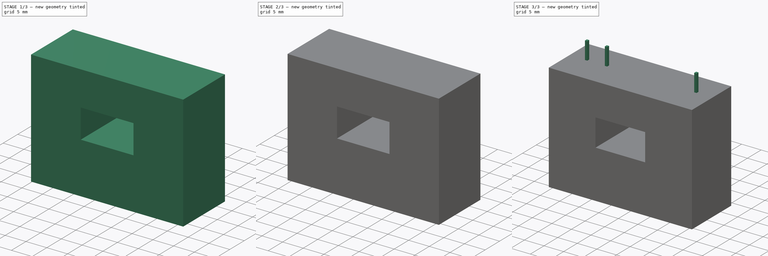
[diagram: build sequence overview — one tinted view per stage of 3, left to right]
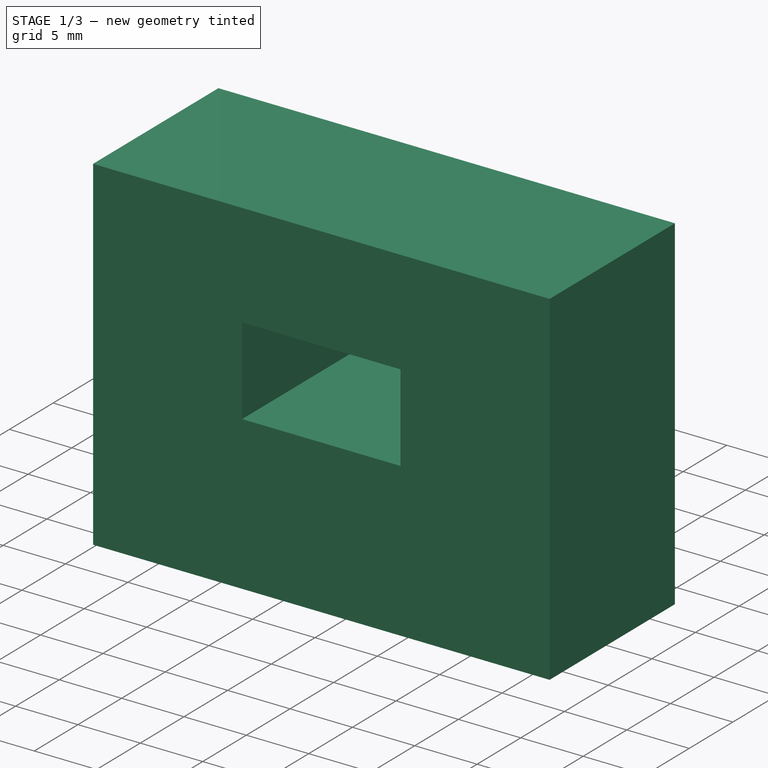
[diagram: stage 1 of 3 — iso view after this stage's code; geometry added in this stage tinted green]
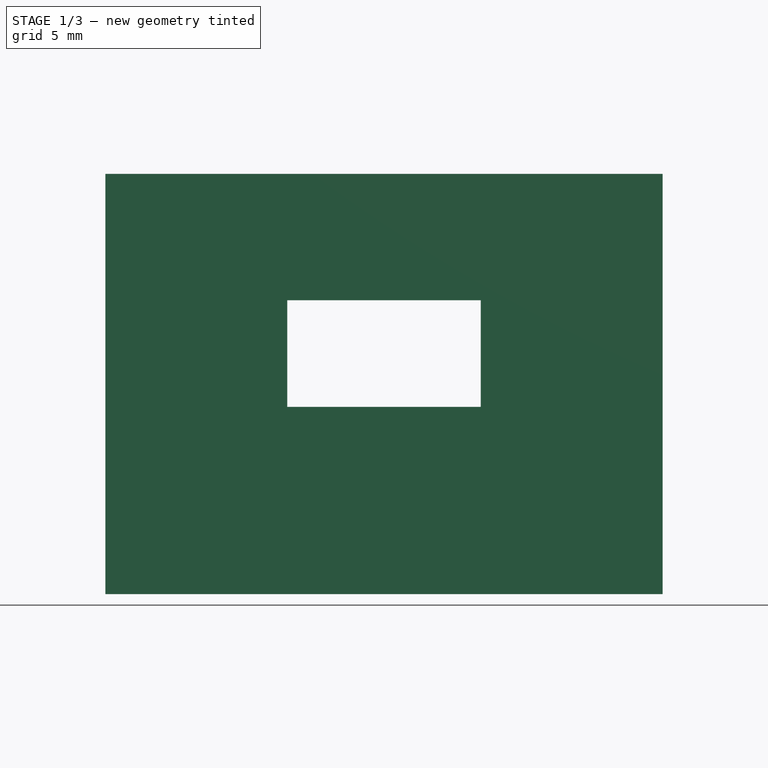
[diagram: stage 1 of 3 — front view after this stage's code; geometry added in this stage tinted green]
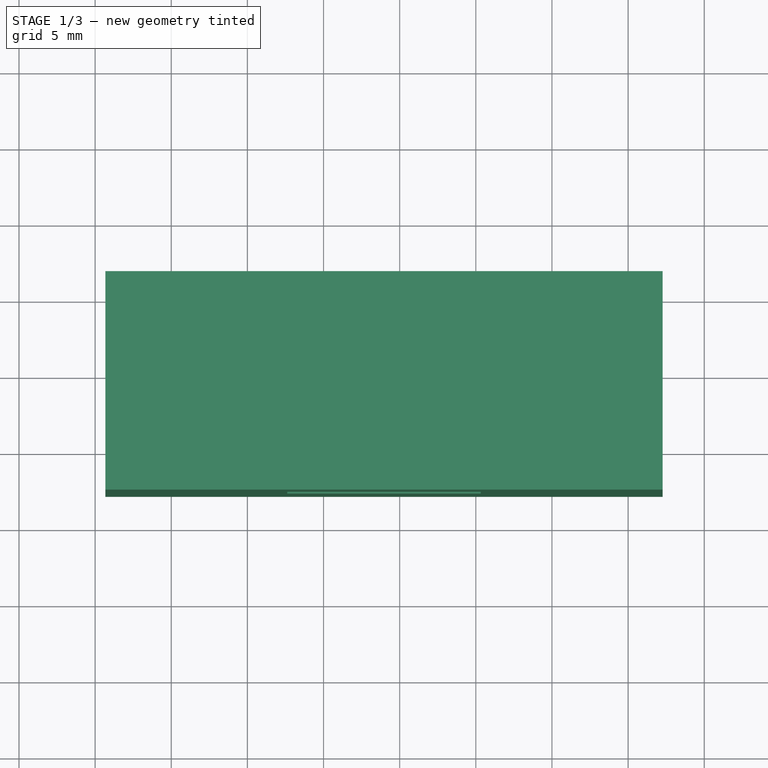
[diagram: stage 1 of 3 — top view after this stage's code; geometry added in this stage tinted green]
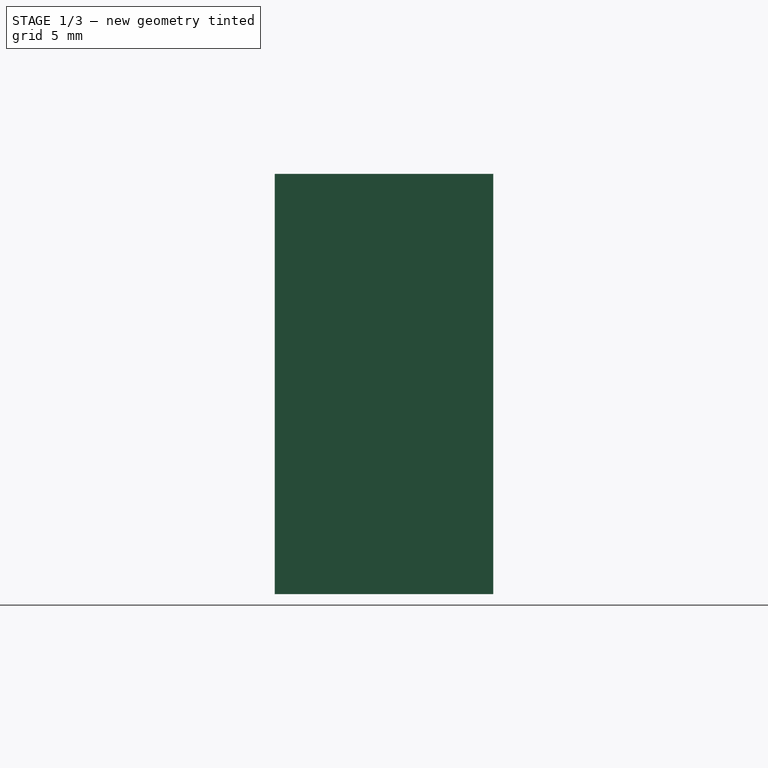
[diagram: stage 1 of 3 — right view after this stage's code; geometry added in this stage tinted green]
FCSTD DOCUMENT  (FreeCAD 0.16R)
Label: LA25-P
License: All rights reserved
LicenseURL: http://en.wikipedia.org/wiki/All_rights_reserved
objects: Sketcher::SketchObject×4, Part::Extrusion×2, PartDesign::Pocket×1, PartDesign::Pad×1, Part::Fuse×1
note: 11 computed .brp shape members not serialized (recipe doc carries the construction recipe); baked Part::Feature solids carry a one-line shape summary decoded from their .brp

FEATURE [Sketcher::SketchObject] Sketch001
  sketch-geometry (4):
    g0: LineSegment StartX=-4.33 StartY=6.55 StartZ=0 EndX=32.27 EndY=6.55 EndZ=0
    g1: LineSegment StartX=32.27 StartY=6.55 StartZ=0 EndX=32.27 EndY=-7.8 EndZ=0
    g2: LineSegment StartX=32.27 StartY=-7.8 StartZ=0 EndX=-4.33 EndY=-7.8 EndZ=0
    g3: LineSegment StartX=-4.33 StartY=-7.8 StartZ=0 EndX=-4.33 EndY=6.55 EndZ=0
  constraints (12):
    c: Coincident(g0,g1)
    c: Coincident(g1,g2)
    c: Coincident(g2,g3)
    c: Coincident(g3,g0)
    c: Horizontal(g0)
    c: Horizontal(g2)
    c: Vertical(g1)
    c: Vertical(g3)
    c: DistanceX(g0,g0) = 36.6
    c: DistanceY(g1,g1) = 14.35
    c: DistanceX(g0,g-1) = 4.33
    c: DistanceY(g-1,g0) = 6.55
FEATURE [Part::Extrusion] Extrude001
  Base = -> Sketch001
  Dir = (0,0,-27.6)
  Solid = true
FEATURE [Sketcher::SketchObject] Sketch002
  Placement = pos=(0,6.55,0) rot=(0,0.707107,0.707107;3.14159rad)
  Support = -> Extrude001 [Face1]
  expr: Constraints[8] = 8.890000000000001 + 5.08
  sketch-geometry (5):
    g0: LineSegment StartX=-20.32 StartY=-8.3 StartZ=0 EndX=-7.62 EndY=-8.3 EndZ=0
    g1: LineSegment StartX=-7.62 StartY=-8.3 StartZ=0 EndX=-7.62 EndY=-15.3 EndZ=0
    g2: LineSegment StartX=-7.62 StartY=-15.3 StartZ=0 EndX=-20.32 EndY=-15.3 EndZ=0
    g3: LineSegment StartX=-20.32 StartY=-15.3 StartZ=0 EndX=-20.32 EndY=-8.3 EndZ=0
    g4: GeomPoint [constr] X=-13.97 Y=-11.8 Z=0
  constraints (13):
    c: Coincident(g0,g1)
    c: Coincident(g1,g2)
    c: Coincident(g2,g3)
    c: Coincident(g3,g0)
    c: Horizontal(g0)
    c: Horizontal(g2)
    c: Vertical(g1)
    c: Vertical(g3)
    c: DistanceX(g4,g-1) = 13.97
    c: DistanceY(g4,g-1) = 11.8
    c: Symmetric(g0,g1,g4)
    c: DistanceY(g1,g1) = 7
    c: DistanceX(g2,g2) = 12.7
FEATURE [PartDesign::Pocket] Pocket
  Length = 5
  Sketch = -> Sketch002
  Type = 1
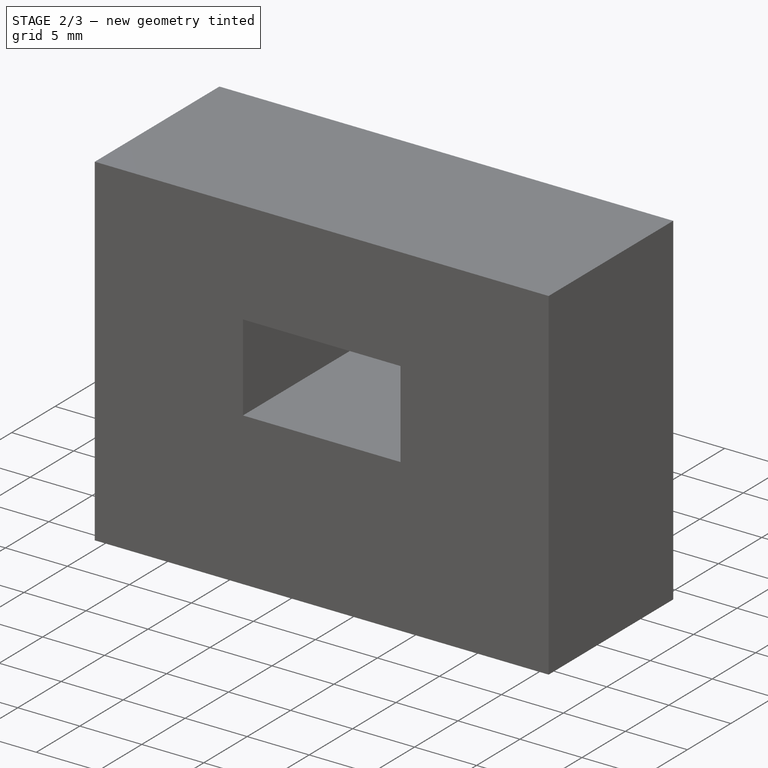
[diagram: stage 2 of 3 — iso view after this stage's code; geometry added in this stage tinted green]
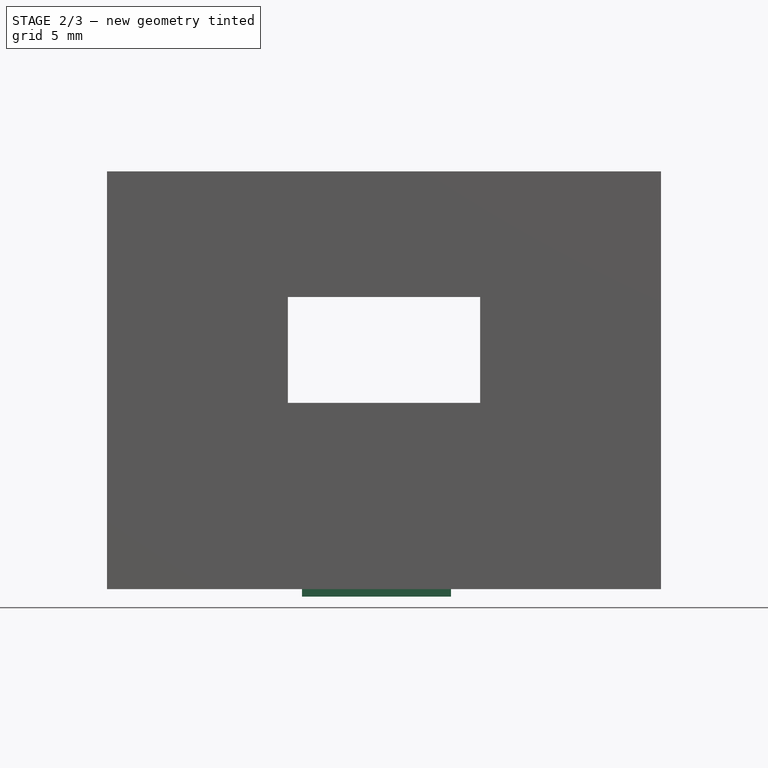
[diagram: stage 2 of 3 — front view after this stage's code; geometry added in this stage tinted green]
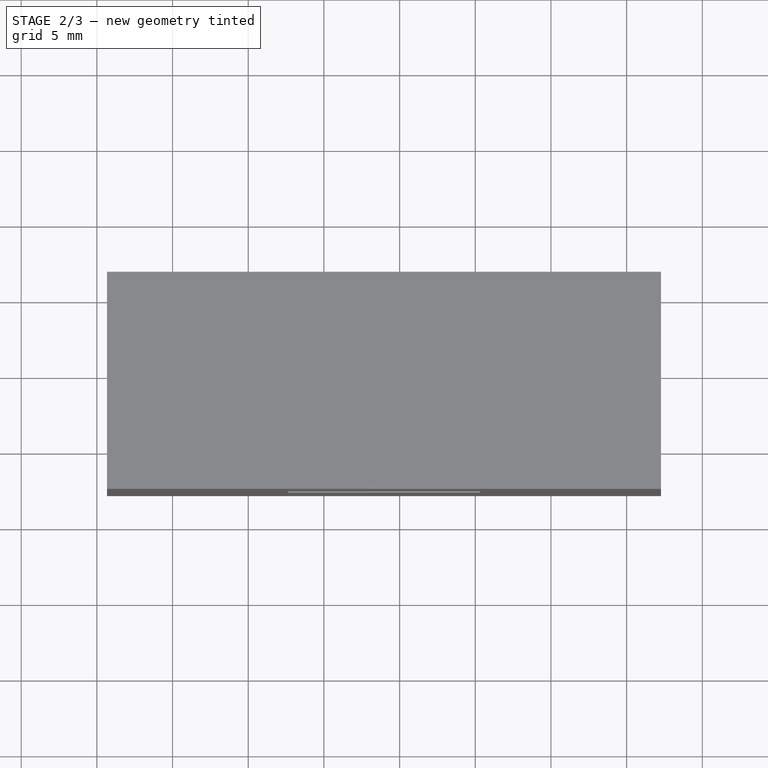
[diagram: stage 2 of 3 — top view after this stage's code; geometry added in this stage tinted green]
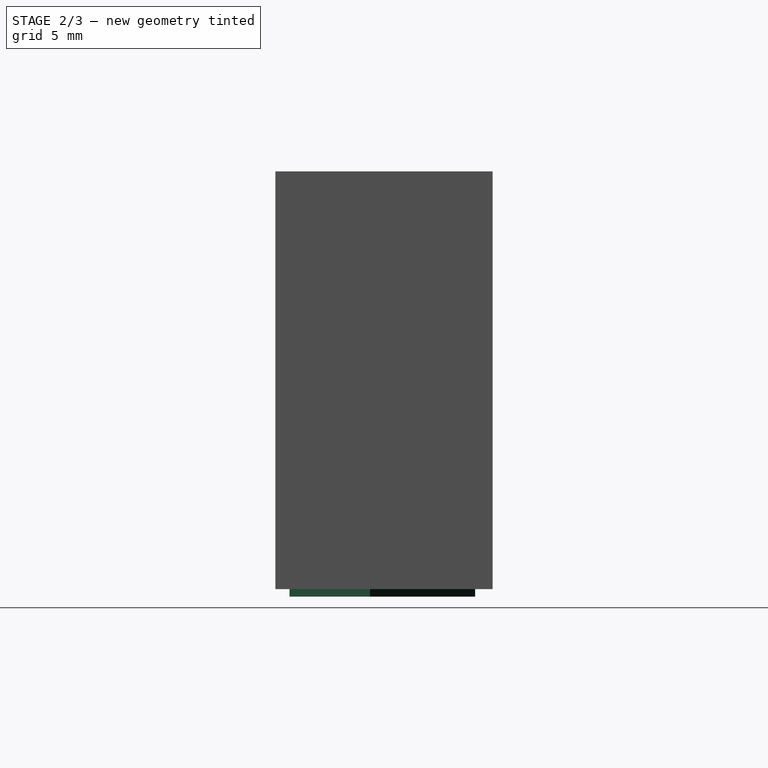
[diagram: stage 2 of 3 — right view after this stage's code; geometry added in this stage tinted green]
FEATURE [Sketcher::SketchObject] Sketch003
  Placement = pos=(0,0,-27.6) rot=(1,0,0;3.14159rad)
  Support = -> Pocket [Face4]
  sketch-geometry (7):
    g0: LineSegment StartX=11.9 StartY=6.87157 StartZ=0 EndX=15.0478 EndY=6.87157 EndZ=0
    g1: LineSegment StartX=15.0478 StartY=6.87157 StartZ=0 EndX=15.0478 EndY=1.54931 EndZ=0
    g2: LineSegment StartX=15.0478 StartY=1.54931 StartZ=0 EndX=18.3963 EndY=1.54931 EndZ=0
    g3: LineSegment StartX=18.3963 StartY=1.54931 StartZ=0 EndX=13.4739 EndY=-5.39675 EndZ=0
    g4: LineSegment StartX=13.4739 StartY=-5.39675 StartZ=0 EndX=8.55147 EndY=1.54931 EndZ=0
    g5: LineSegment StartX=8.55147 StartY=1.54931 StartZ=0 EndX=11.9 EndY=1.54931 EndZ=0
    g6: LineSegment StartX=11.9 StartY=1.54931 StartZ=0 EndX=11.9 EndY=6.87157 EndZ=0
  constraints (15):
    c: Horizontal(g0)
    c: Vertical(g1)
    c: Coincident(g2,g1)
    c: Horizontal(g2)
    c: Coincident(g4,g3)
    c: Horizontal(g5)
    c: Coincident(g6,g5)
    c: Vertical(g6)
    c: Coincident(g1,g0)
    c: Coincident(g6,g0)
    c: Coincident(g5,g4)
    c: Coincident(g3,g2)
    c: DistanceY(g5,g1) = 0
    c: Equal(g2,g5)
    c: Equal(g3,g4)
FEATURE [PartDesign::Pad] Pad
  Length = 0.5
  Length2 = 100
  Sketch = -> Sketch003
  Type = 0
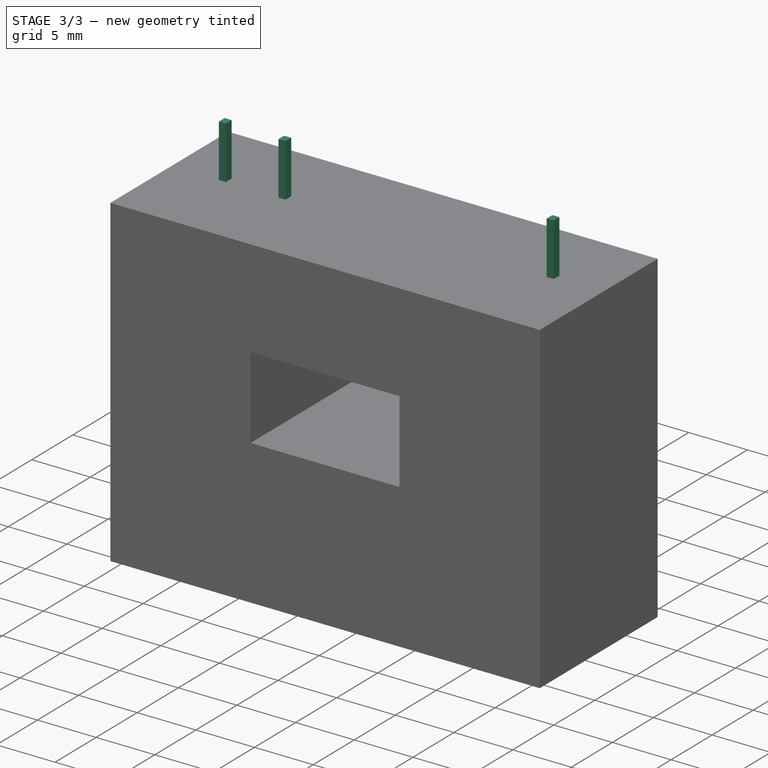
[diagram: stage 3 of 3 — iso view after this stage's code; geometry added in this stage tinted green]
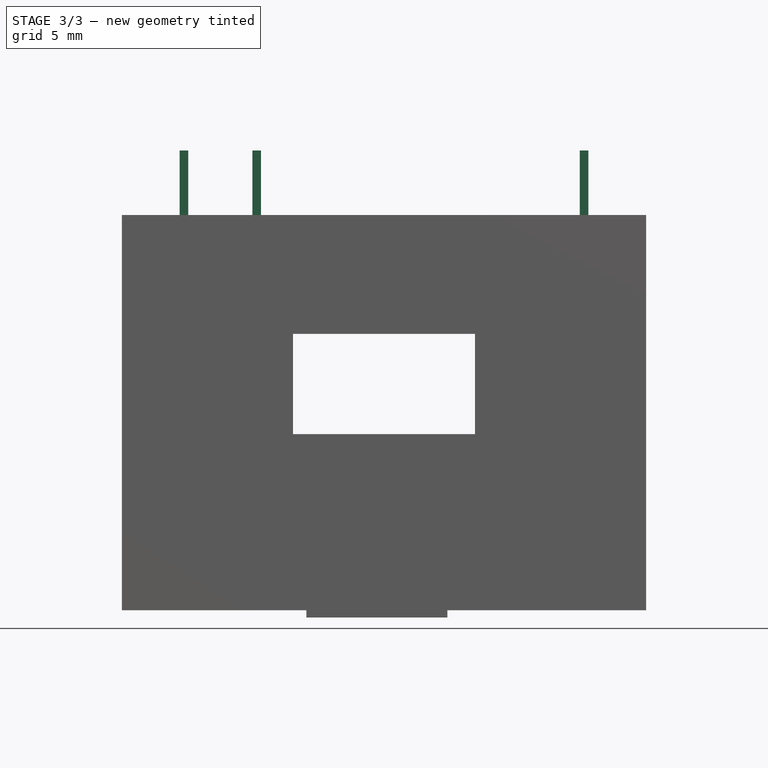
[diagram: stage 3 of 3 — front view after this stage's code; geometry added in this stage tinted green]
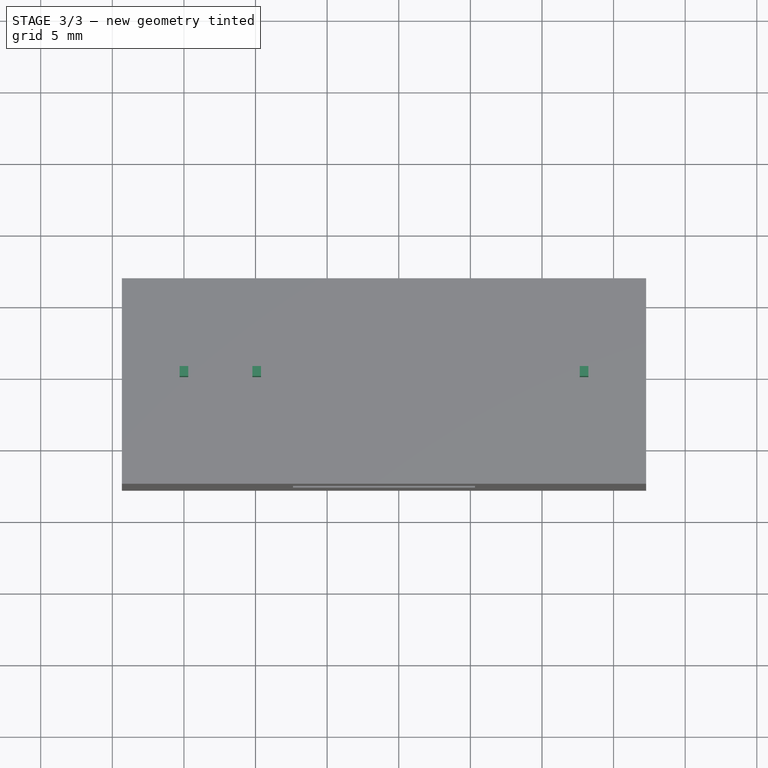
[diagram: stage 3 of 3 — top view after this stage's code; geometry added in this stage tinted green]
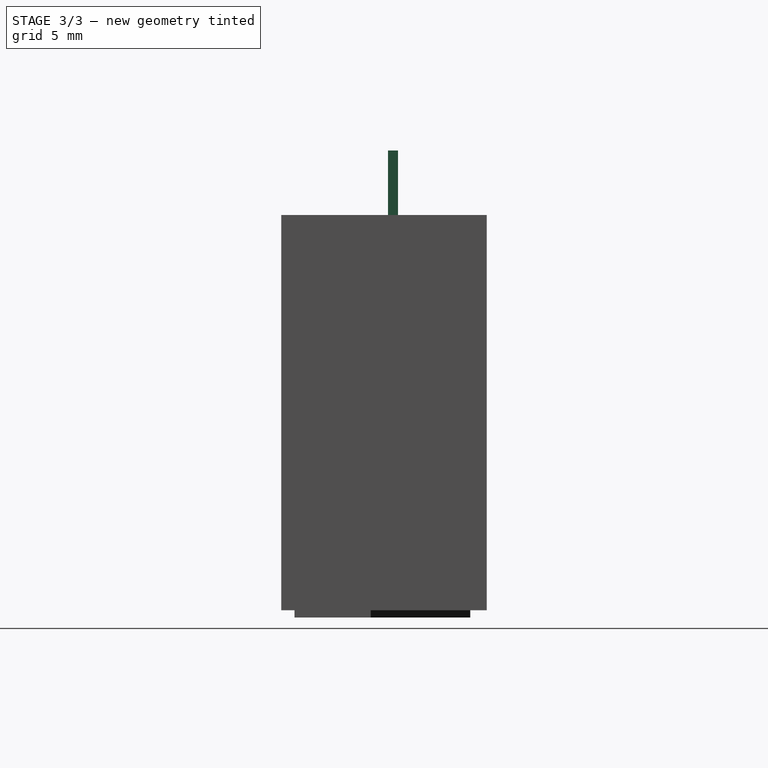
[diagram: stage 3 of 3 — right view after this stage's code; geometry added in this stage tinted green]
FEATURE [Sketcher::SketchObject] Sketch
  sketch-geometry (14):
    g0: LineSegment StartX=-0.3 StartY=0.35 StartZ=0 EndX=0.3 EndY=0.35 EndZ=0
    g1: LineSegment StartX=0.3 StartY=0.35 StartZ=0 EndX=0.3 EndY=-0.35 EndZ=0
    g2: LineSegment StartX=0.3 StartY=-0.35 StartZ=0 EndX=-0.3 EndY=-0.35 EndZ=0
    g3: LineSegment StartX=-0.3 StartY=-0.35 StartZ=0 EndX=-0.3 EndY=0.35 EndZ=0
    g4: LineSegment StartX=4.78 StartY=-0.35 StartZ=0 EndX=5.38 EndY=-0.35 EndZ=0
    g5: LineSegment StartX=5.38 StartY=-0.35 StartZ=0 EndX=5.38 EndY=0.35 EndZ=0
    g6: LineSegment StartX=5.38 StartY=0.35 StartZ=0 EndX=4.78 EndY=0.35 EndZ=0
    g7: LineSegment StartX=4.78 StartY=0.35 StartZ=0 EndX=4.78 EndY=-0.35 EndZ=0
    g8: LineSegment StartX=27.64 StartY=0.35 StartZ=0 EndX=28.24 EndY=0.35 EndZ=0
    g9: LineSegment StartX=28.24 StartY=0.35 StartZ=0 EndX=28.24 EndY=-0.35 EndZ=0
    g10: LineSegment StartX=28.24 StartY=-0.35 StartZ=0 EndX=27.64 EndY=-0.35 EndZ=0
    g11: LineSegment StartX=27.64 StartY=-0.35 StartZ=0 EndX=27.64 EndY=0.35 EndZ=0
    g12: GeomPoint [constr] X=5.08 Y=0 Z=0
    g13: GeomPoint [constr] X=27.94 Y=0 Z=0
  constraints (39):
    c: Coincident(g0,g1)
    c: Coincident(g1,g2)
    c: Coincident(g2,g3)
    c: Coincident(g3,g0)
    c: Horizontal(g0)
    c: Horizontal(g2)
    c: Vertical(g1)
    c: Vertical(g3)
    c: DistanceX(g0,g0) = 0.6
    c: DistanceY(g1,g1) = 0.7
    c: Symmetric(g0,g0,g-2)
    c: Symmetric(g0,g1,g-1)
    c: Coincident(g4,g5)
    c: Coincident(g5,g6)
    c: Coincident(g6,g7)
    c: Coincident(g7,g4)
    c: Horizontal(g4)
    c: Horizontal(g6)
    c: Vertical(g5)
    c: Vertical(g7)
    c: Coincident(g8,g9)
    c: Coincident(g9,g10)
    c: Coincident(g10,g11)
    c: Coincident(g11,g8)
    c: Horizontal(g8)
    c: Horizontal(g10)
    c: Vertical(g9)
    c: Vertical(g11)
    c: PointOnObject(g12,g-1)
    c: DistanceX(g-1,g12) = 5.08
    c: Equal(g6,g2)
    c: Equal(g10,g6)
    c: Equal(g7,g1)
    c: Equal(g1,g11)
    c: Symmetric(g4,g6,g12)
    c: Symmetric(g4,g5,g12)
    c: PointOnObject(g13,g-1)
    c: DistanceX(g12,g13) = 22.86
    c: Symmetric(g8,g9,g13)
FEATURE [Part::Extrusion] Extrude
  Base = -> Sketch
  Dir = (0,0,4.5)
  Solid = true
FEATURE [Part::Fuse] Fusion
  Base = -> Extrude
  Tool = -> Pad
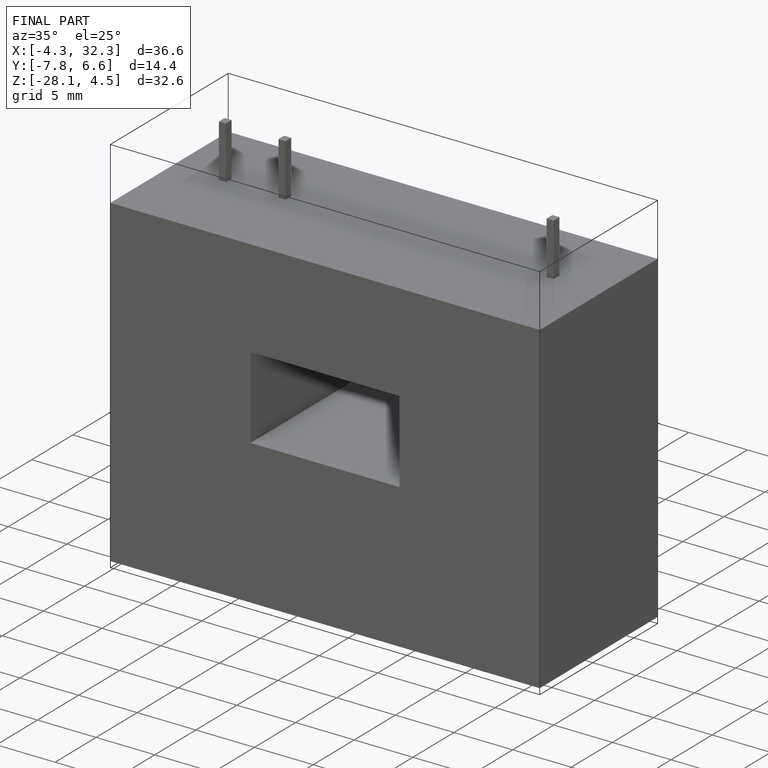
[diagram: finished part — iso view with bounding-box wireframe]
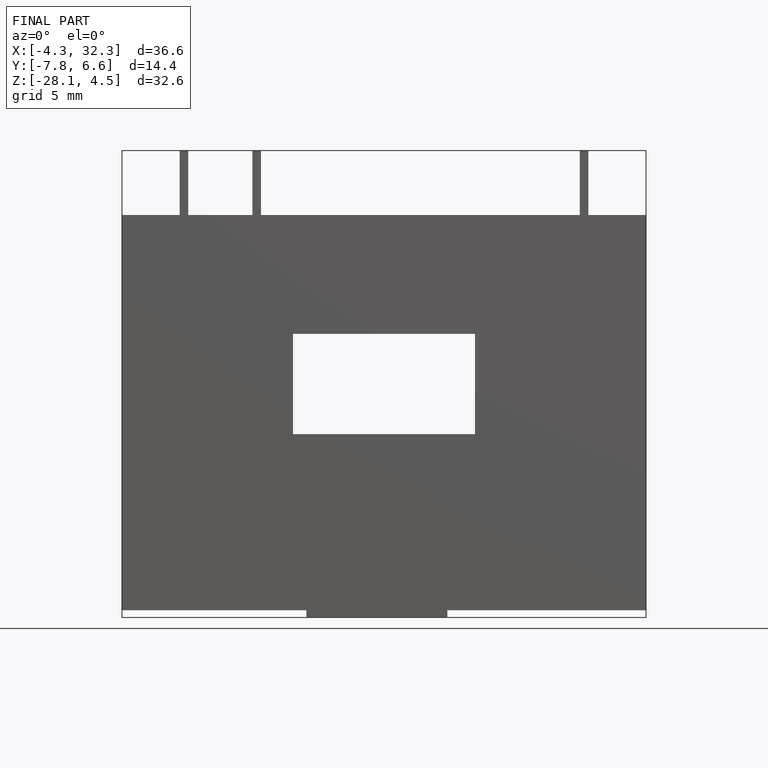
[diagram: finished part — front view with bounding-box wireframe]
